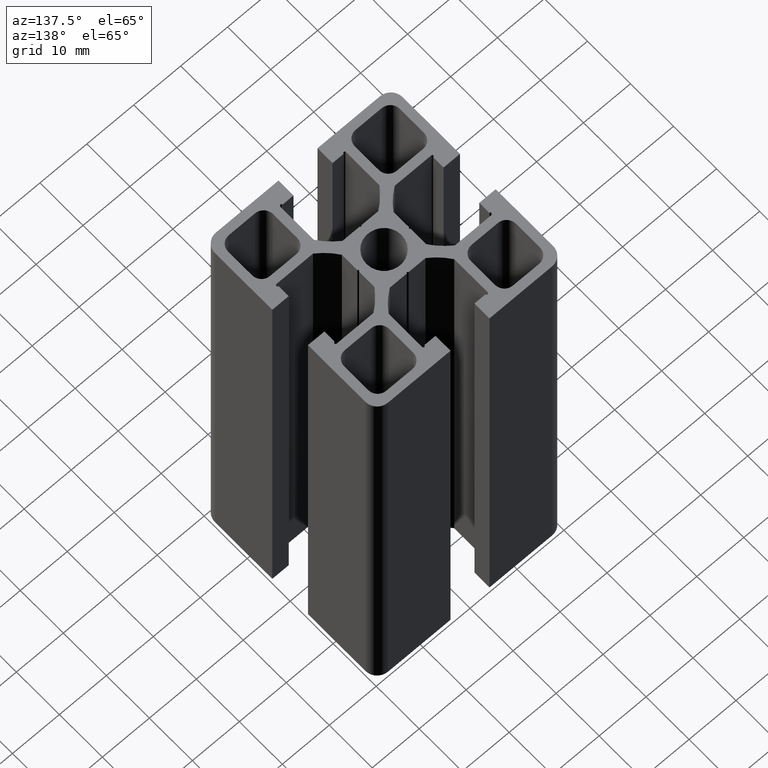
[diagram: clean part render]
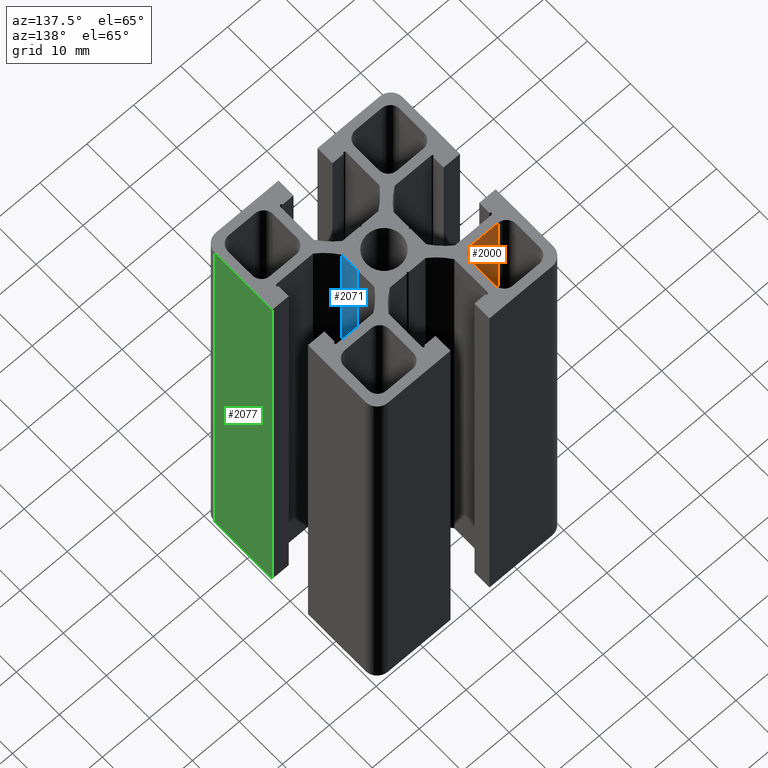
[diagram: same view with three faces highlighted in distinct colors, each labeled with its STEP entity id]
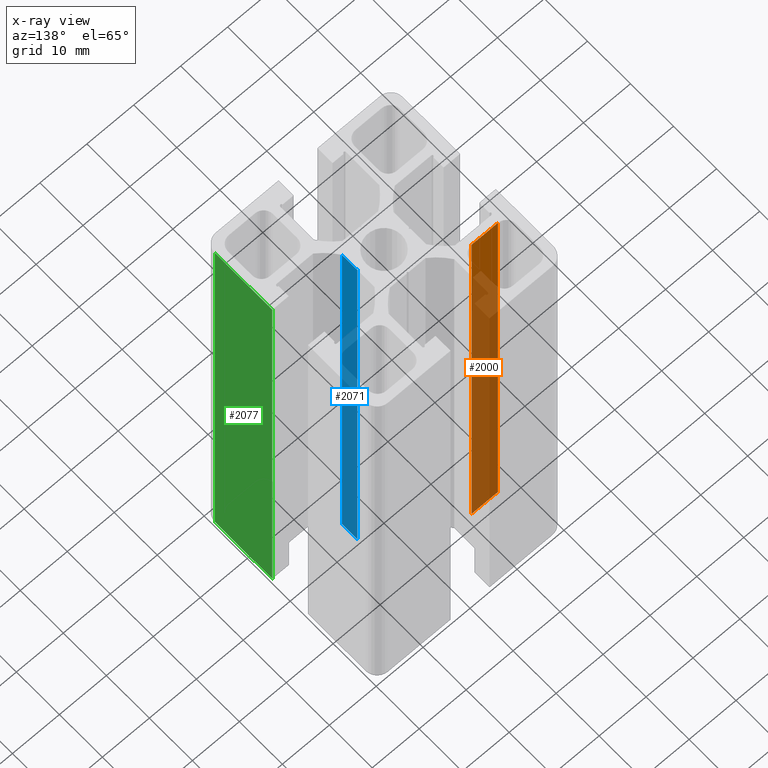
[diagram: x-ray of the same camera — body ghosted, the three highlighted faces saturated]
A machine part, auxiliary view with three faces highlighted in distinct colors.
The next image is the same camera in x-ray (body ghosted, the three faces saturated) — at least one of them is partly hidden behind the body in this view.
Their STEP definitions:

[orange] entity #2000 — the highlighted planar face has unit normal (-0, -1, 0).
#34=PLANE('',#2121);
#108=FACE_OUTER_BOUND('',#211,.T.);
#211=EDGE_LOOP('',(#1407,#1408,#1409,#1410));
#341=LINE('',#2950,#569);
#342=LINE('',#2952,#570);
#343=LINE('',#2954,#571);
#344=LINE('',#2955,#572);
#569=VECTOR('',#2366,5.60000000000019);
#570=VECTOR('',#2367,100.);
#571=VECTOR('',#2368,5.60000000000019);
#572=VECTOR('',#2369,100.);
#871=VERTEX_POINT('',#2948);
#872=VERTEX_POINT('',#2949);
#873=VERTEX_POINT('',#2951);
#874=VERTEX_POINT('',#2953);
#1089=EDGE_CURVE('',#871,#872,#341,.T.);
#1090=EDGE_CURVE('',#871,#873,#342,.T.);
#1091=EDGE_CURVE('',#874,#873,#343,.T.);
#1092=EDGE_CURVE('',#872,#874,#344,.T.);
#1407=ORIENTED_EDGE('',*,*,#1089,.F.);
#1408=ORIENTED_EDGE('',*,*,#1090,.T.);
#1409=ORIENTED_EDGE('',*,*,#1091,.F.);
#1410=ORIENTED_EDGE('',*,*,#1092,.F.);
#2000=ADVANCED_FACE('',(#108),#34,.F.);
#2121=AXIS2_PLACEMENT_3D('',#2947,#2364,#2365);
#2364=DIRECTION('center_axis',(-2.53765262771456E-14,-1.,0.));
#2365=DIRECTION('ref_axis',(1.,-2.54019028034236E-14,0.));
#2366=DIRECTION('',(1.,-2.53765262771456E-14,0.));
#2367=DIRECTION('',(0.,0.,1.));
#2368=DIRECTION('',(-1.,2.53765262771456E-14,0.));
#2369=DIRECTION('',(0.,0.,1.));
#2947=CARTESIAN_POINT('Origin',(-16.3000000000002,8.70000000000005,0.));
#2948=CARTESIAN_POINT('',(-16.3000000000002,8.70000000000005,0.));
#2949=CARTESIAN_POINT('',(-10.7,8.6999999999999,0.));
#2950=CARTESIAN_POINT('',(-8.15000000000005,8.69999999999984,0.));
#2951=CARTESIAN_POINT('',(-16.3000000000002,8.70000000000005,100.));
#2952=CARTESIAN_POINT('',(-16.3000000000002,8.70000000000005,0.));
#2953=CARTESIAN_POINT('',(-10.7,8.6999999999999,100.));
#2954=CARTESIAN_POINT('',(-8.15000000000005,8.69999999999984,100.));
#2955=CARTESIAN_POINT('',(-10.7,8.6999999999999,0.));

[blue] entity #2071 — the highlighted planar face has unit normal (1, 0, 0).
#81=PLANE('',#2240);
#179=FACE_OUTER_BOUND('',#283,.T.);
#283=EDGE_LOOP('',(#1689,#1690,#1691,#1692));
#505=LINE('',#3374,#733);
#506=LINE('',#3377,#734);
#507=LINE('',#3379,#735);
#508=LINE('',#3380,#736);
#733=VECTOR('',#2766,100.);
#734=VECTOR('',#2769,3.60000000000003);
#735=VECTOR('',#2770,3.60000000000003);
#736=VECTOR('',#2771,100.);
#1013=VERTEX_POINT('',#3370);
#1014=VERTEX_POINT('',#3372);
#1015=VERTEX_POINT('',#3376);
#1016=VERTEX_POINT('',#3378);
#1301=EDGE_CURVE('',#1013,#1014,#505,.T.);
#1302=EDGE_CURVE('',#1015,#1013,#506,.T.);
#1303=EDGE_CURVE('',#1016,#1014,#507,.T.);
#1304=EDGE_CURVE('',#1015,#1016,#508,.T.);
#1689=ORIENTED_EDGE('',*,*,#1302,.T.);
#1690=ORIENTED_EDGE('',*,*,#1301,.T.);
#1691=ORIENTED_EDGE('',*,*,#1303,.F.);
#1692=ORIENTED_EDGE('',*,*,#1304,.F.);
#2071=ADVANCED_FACE('',(#179),#81,.T.);
#2240=AXIS2_PLACEMENT_3D('',#3375,#2767,#2768);
#2766=DIRECTION('',(0.,0.,1.));
#2767=DIRECTION('center_axis',(1.,0.,0.));
#2768=DIRECTION('ref_axis',(0.,1.,0.));
#2769=DIRECTION('',(0.,1.,0.));
#2770=DIRECTION('',(0.,1.,0.));
#2771=DIRECTION('',(0.,0.,1.));
#3370=CARTESIAN_POINT('',(5.4999999999999,-0.19999999999996,0.));
#3372=CARTESIAN_POINT('',(5.4999999999999,-0.19999999999996,100.));
#3374=CARTESIAN_POINT('',(5.4999999999999,-0.19999999999996,0.));
#3375=CARTESIAN_POINT('Origin',(5.4999999999999,-3.79999999999999,0.));
#3376=CARTESIAN_POINT('',(5.4999999999999,-3.79999999999999,0.));
#3377=CARTESIAN_POINT('',(5.4999999999999,-3.79999999999999,0.));
#3378=CARTESIAN_POINT('',(5.4999999999999,-3.79999999999999,100.));
#3379=CARTESIAN_POINT('',(5.4999999999999,-3.79999999999999,100.));
#3380=CARTESIAN_POINT('',(5.4999999999999,-3.79999999999999,0.));

[green] entity #2077 — the highlighted planar face has unit normal (1, 0, 0).
#85=PLANE('',#2250);
#185=FACE_OUTER_BOUND('',#289,.T.);
#289=EDGE_LOOP('',(#1713,#1714,#1715,#1716));
#519=LINE('',#3410,#747);
#520=LINE('',#3413,#748);
#521=LINE('',#3415,#749);
#522=LINE('',#3416,#750);
#747=VECTOR('',#2800,100.);
#748=VECTOR('',#2803,13.3500000000001);
#749=VECTOR('',#2804,13.3500000000001);
#750=VECTOR('',#2805,100.);
#1025=VERTEX_POINT('',#3406);
#1026=VERTEX_POINT('',#3408);
#1027=VERTEX_POINT('',#3412);
#1028=VERTEX_POINT('',#3414);
#1319=EDGE_CURVE('',#1025,#1026,#519,.T.);
#1320=EDGE_CURVE('',#1027,#1025,#520,.T.);
#1321=EDGE_CURVE('',#1028,#1026,#521,.T.);
#1322=EDGE_CURVE('',#1027,#1028,#522,.T.);
#1713=ORIENTED_EDGE('',*,*,#1320,.T.);
#1714=ORIENTED_EDGE('',*,*,#1319,.T.);
#1715=ORIENTED_EDGE('',*,*,#1321,.F.);
#1716=ORIENTED_EDGE('',*,*,#1322,.F.);
#2077=ADVANCED_FACE('',(#185),#85,.T.);
#2250=AXIS2_PLACEMENT_3D('',#3411,#2801,#2802);
#2800=DIRECTION('',(0.,0.,1.));
#2801=DIRECTION('center_axis',(1.,0.,0.));
#2802=DIRECTION('ref_axis',(0.,1.,0.));
#2803=DIRECTION('',(0.,1.,0.));
#2804=DIRECTION('',(0.,1.,0.));
#2805=DIRECTION('',(0.,0.,1.));
#3406=CARTESIAN_POINT('',(19.9999999999999,-4.14999999999996,0.));
#3408=CARTESIAN_POINT('',(19.9999999999999,-4.14999999999996,100.));
#3410=CARTESIAN_POINT('',(19.9999999999999,-4.14999999999996,0.));
#3411=CARTESIAN_POINT('Origin',(19.9999999999999,-17.5,0.));
#3412=CARTESIAN_POINT('',(19.9999999999999,-17.5,0.));
#3413=CARTESIAN_POINT('',(19.9999999999999,-17.5,0.));
#3414=CARTESIAN_POINT('',(19.9999999999999,-17.5,100.));
#3415=CARTESIAN_POINT('',(19.9999999999999,-17.5,100.));
#3416=CARTESIAN_POINT('',(19.9999999999999,-17.5,0.));